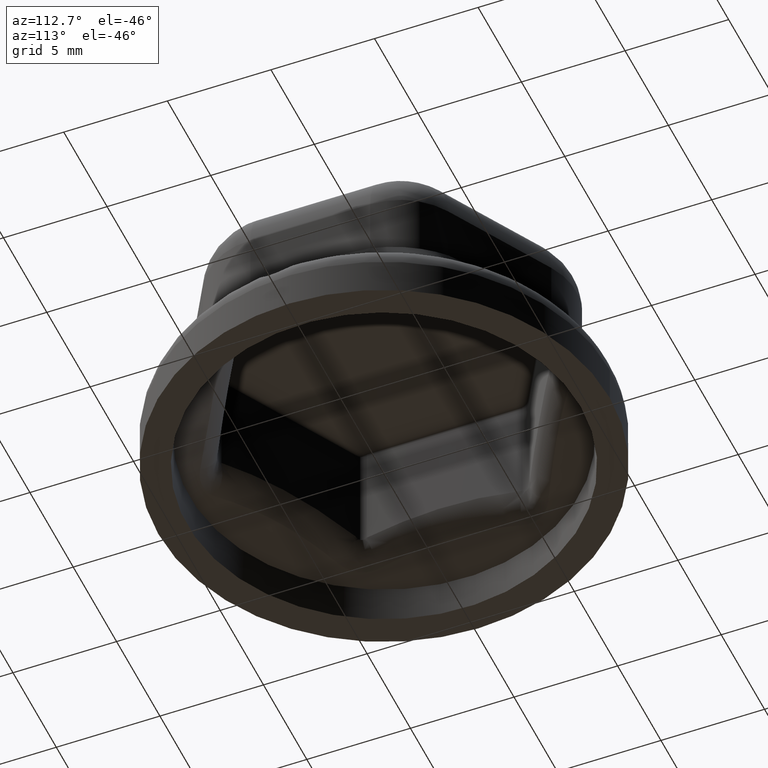
[diagram: clean part render]
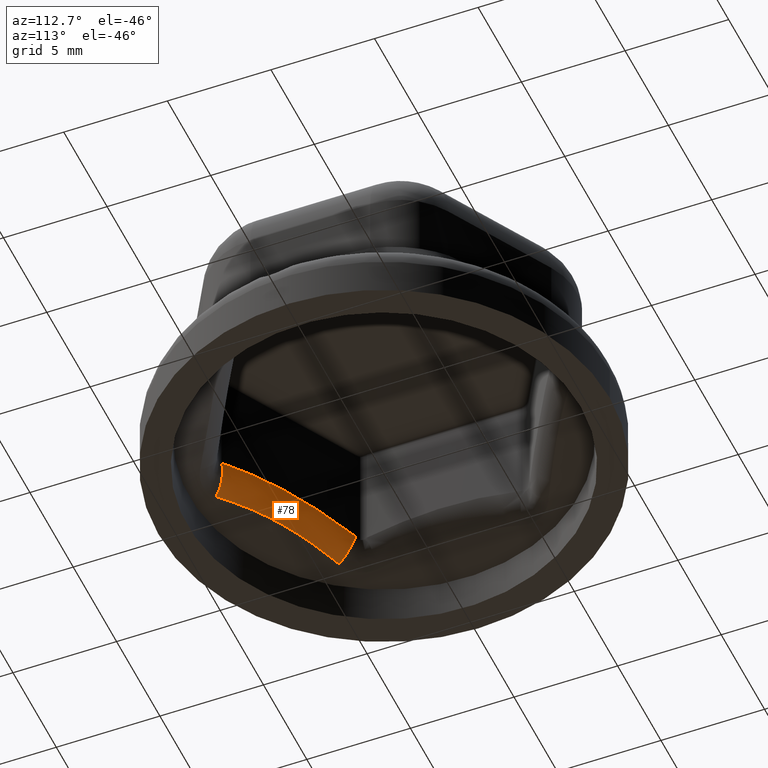
[diagram: same view with one face highlighted and labeled with its STEP entity id]
A machine part, auxiliary view. The second image highlights one B-rep face of the part: STEP entity #78.
In plain terms, the highlighted face is a freeform B-spline surface patch.
Its self-contained STEP definition (entity closure, byte-faithful):
#78 = ADVANCED_FACE( '', ( #162 ), #163, .T. );
#162 = FACE_OUTER_BOUND( '', #424, .T. );
#163 = ( B_SPLINE_SURFACE( 3, 2, ( ( #426, #427, #428 ), ( #429, #430, #431 ), ( #432, #433, #434 ), ( #435, #436, #437 ), ( #438, #439, #440 ), ( #441, #442, #443 ), ( #444, #445, #446 ), ( #447, #448, #449 ), ( #450, #451, #452 ), ( #453, #454, #455 ), ( #456, #457, #458 ), ( #459, #460, #461 ), ( #462, #463, #464 ), ( #465, #466, #467 ), ( #468, #469, #470 ), ( #471, #472, #473 ), ( #474, #475, #476 ), ( #477, #478, #479 ), ( #480, #481, #482 ), ( #483, #484, #485 ), ( #486, #487, #488 ), ( #489, #490, #491 ) ), .UNSPECIFIED., .F., .F., .F. )B_SPLINE_SURFACE_WITH_KNOTS( ( 4, 2, 2, 2, 2, 2, 2, 2, 2, 2, 4 ), ( 3, 3 ), ( -1.73472347597681E-018, 0.000940884050545958, 0.00188176810109192, 0.00282265215163788, 0.00376353620218384, 0.00470442025272980, 0.00493964126536629, 0.00517486227800278, 0.00564530430327576, 0.00658618835382172, 0.00752707240436768 ), ( 0.000000000000000, 1.00000000000000 ), .UNSPECIFIED. )RATIONAL_B_SPLINE_SURFACE( ( ( 1.00000000000000, 0.853640352292913, 1.00000000000000 ), ( 1.00000000000000, 0.855438688548693, 1.00000000000000 ), ( 1.00000000000000, 0.857121907416946, 1.00000000000000 ), ( 1.00000000000000, 0.860138400635577, 1.00000000000000 ), ( 1.00000000000000, 0.861471084543621, 1.00000000000000 ), ( 1.00000000000000, 0.863669881456907, 1.00000000000000 ), ( 1.00000000000000, 0.864535181731640, 1.00000000000000 ), ( 1.00000000000000, 0.865708817500304, 1.00000000000000 ), ( 1.00000000000000, 0.866016527547667, 1.00000000000000 ), ( 1.00000000000000, 0.866033898519984, 1.00000000000000 ), ( 1.00000000000000, 0.865743429549567, 1.00000000000000 ), ( 1.00000000000000, 0.865019447407106, 1.00000000000000 ), ( 1.00000000000000, 0.864856755115137, 1.00000000000000 ), ( 1.00000000000000, 0.864496481522335, 1.00000000000000 ), ( 1.00000000000000, 0.864298827518677, 1.00000000000000 ), ( 1.00000000000000, 0.863656912061713, 1.00000000000000 ), ( 1.00000000000000, 0.863163250316438, 1.00000000000000 ), ( 1.00000000000000, 0.861505368756379, 1.00000000000000 ), ( 1.00000000000000, 0.860163993618714, 1.00000000000000 ), ( 1.00000000000000, 0.857132156472155, 1.00000000000000 ), ( 1.00000000000000, 0.855442233223448, 1.00000000000000 ), ( 1.00000000000000, 0.853640352292913, 1.00000000000000 ) ) )BOUNDED_SURFACE(  )REPRESENTATION_ITEM( '' )GEOMETRIC_REPRESENTATION_ITEM(  )SURFACE(  ) );
#424 = EDGE_LOOP( '', ( #2878, #2879, #2880, #2881 ) );
#426 = CARTESIAN_POINT( '', ( -6.75000000000000, -4.18578945162479, 3.59465102480765 ) );
#427 = CARTESIAN_POINT( '', ( -6.56999875817767, -4.28971321704538, 2.70331384501177 ) );
#428 = CARTESIAN_POINT( '', ( -6.89461274718679, -5.04210159902559, 2.29561291913099 ) );
#429 = CARTESIAN_POINT( '', ( -6.48252287388098, -4.34021744239167, 3.66667197854843 ) );
#430 = CARTESIAN_POINT( '', ( -6.31567629244598, -4.43654636109709, 2.77909092662657 ) );
#431 = CARTESIAN_POINT( '', ( -6.64059484851555, -5.17812245719401, 2.36763485032377 ) );
#432 = CARTESIAN_POINT( '', ( -6.21453816361945, -4.49493848699987, 3.73138558984828 ) );
#433 = CARTESIAN_POINT( '', ( -6.06141273176084, -4.58334549630309, 2.84728294727299 ) );
#434 = CARTESIAN_POINT( '', ( -6.38749201579470, -5.31426318877854, 2.43234748395276 ) );
#435 = CARTESIAN_POINT( '', ( -5.67742031992806, -4.80504361864164, 3.84429754955436 ) );
#436 = CARTESIAN_POINT( '', ( -5.55273998998548, -4.87702784069676, 2.96638512344405 ) );
#437 = CARTESIAN_POINT( '', ( -5.88310701389295, -5.58752559880211, 2.54525944409656 ) );
#438 = CARTESIAN_POINT( '', ( -5.40828689336745, -4.96042787491434, 3.89248895292657 ) );
#439 = CARTESIAN_POINT( '', ( -5.29833210525869, -5.02391030142761, 3.01728681343088 ) );
#440 = CARTESIAN_POINT( '', ( -5.63183095151243, -5.72464830706708, 2.59345084706630 ) );
#441 = CARTESIAN_POINT( '', ( -4.86875260647632, -5.27192814068797, 3.97063900532639 ) );
#442 = CARTESIAN_POINT( '', ( -4.78903496955402, -5.31795313982423, 3.09988751368061 ) );
#443 = CARTESIAN_POINT( '', ( -5.13088190519890, -6.00073122384563, 2.67160089983335 ) );
#444 = CARTESIAN_POINT( '', ( -4.59835123851589, -5.42804444326916, 4.00059035181303 ) );
#445 = CARTESIAN_POINT( '', ( -4.53414466421014, -5.46511412622825, 3.13157799224267 ) );
#446 = CARTESIAN_POINT( '', ( -4.88120950734629, -6.13969638157128, 2.70155224601464 ) );
#447 = CARTESIAN_POINT( '', ( -4.05619038772046, -5.74106115641998, 4.04095579128119 ) );
#448 = CARTESIAN_POINT( '', ( -4.02347772711667, -5.75994781982557, 3.17429806435647 ) );
#449 = CARTESIAN_POINT( '', ( -4.38294819284734, -6.42033321692930, 2.74191768572627 ) );
#450 = CARTESIAN_POINT( '', ( -3.78443051371600, -5.89796179283139, 4.05136425706139 ) );
#451 = CARTESIAN_POINT( '', ( -3.76769935008278, -5.90762153465882, 3.18532110079173 ) );
#452 = CARTESIAN_POINT( '', ( -4.13435686168077, -6.56201038280346, 2.75232615134360 ) );
#453 = CARTESIAN_POINT( '', ( -3.23950475118947, -6.21257482851445, 4.05195487156024 ) );
#454 = CARTESIAN_POINT( '', ( -3.25482795930402, -6.20372797018474, 3.18594645725832 ) );
#455 = CARTESIAN_POINT( '', ( -3.63746746204618, -6.84878538568381, 2.75291676592471 ) );
#456 = CARTESIAN_POINT( '', ( -2.96633872809151, -6.37028730548351, 4.04213508432208 ) );
#457 = CARTESIAN_POINT( '', ( -2.99773297299429, -6.35216182973780, 3.17554662217034 ) );
#458 = CARTESIAN_POINT( '', ( -3.38916429429999, -6.99388698686463, 2.74309697868969 ) );
#459 = CARTESIAN_POINT( '', ( -2.62400447930493, -6.56793407617328, 4.01724823657357 ) );
#460 = CARTESIAN_POINT( '', ( -2.67529649942177, -6.53832061455156, 3.14920748203915 ) );
#461 = CARTESIAN_POINT( '', ( -3.07837793099850, -7.17765915070241, 2.71821013088585 ) );
#462 = CARTESIAN_POINT( '', ( -2.55549392037607, -6.60748866581318, 4.01164208577561 ) );
#463 = CARTESIAN_POINT( '', ( -2.61075598387336, -6.57558309857699, 3.14327475814500 ) );
#464 = CARTESIAN_POINT( '', ( -3.01620014871815, -7.21453247802095, 2.71260398011504 ) );
#465 = CARTESIAN_POINT( '', ( -2.41838594053574, -6.68664799488205, 3.99918022524836 ) );
#466 = CARTESIAN_POINT( '', ( -2.48156319004212, -6.65017259287294, 3.13008897328165 ) );
#467 = CARTESIAN_POINT( '', ( -2.89178876228796, -7.28851970036583, 2.70014211955561 ) );
#468 = CARTESIAN_POINT( '', ( -2.34977214868987, -6.72626218607438, 3.99232192514206 ) );
#469 = CARTESIAN_POINT( '', ( -2.41689545323414, -6.68750852812679, 3.12283317457073 ) );
#470 = CARTESIAN_POINT( '', ( -2.82954030642810, -7.32564260435356, 2.69328381951365 ) );
#471 = CARTESIAN_POINT( '', ( -2.14430783696277, -6.84488706175888, 3.96994882216520 ) );
#472 = CARTESIAN_POINT( '', ( -2.22319459904195, -6.79934176843709, 3.09916757161490 ) );
#473 = CARTESIAN_POINT( '', ( -2.64314857608818, -7.43709878244336, 2.67091071639203 ) );
#474 = CARTESIAN_POINT( '', ( -2.00767002748138, -6.92377493784444, 3.95262162539415 ) );
#475 = CARTESIAN_POINT( '', ( -2.09430881239307, -6.87375401205343, 3.08084448531785 ) );
#476 = CARTESIAN_POINT( '', ( -2.51920940441610, -7.51160854581036, 2.65358351982673 ) );
#477 = CARTESIAN_POINT( '', ( -1.59872648448986, -7.15987860247396, 3.89372757592808 ) );
#478 = CARTESIAN_POINT( '', ( -1.70829675953528, -7.09661817468127, 3.01859513871408 ) );
#479 = CARTESIAN_POINT( '', ( -2.14814335344640, -7.73575169671285, 2.59468947003294 ) );
#480 = CARTESIAN_POINT( '', ( -1.32739152662762, -7.31653391343628, 3.84524191958265 ) );
#481 = CARTESIAN_POINT( '', ( -1.45181327163846, -7.24469898546087, 2.96738181750420 ) );
#482 = CARTESIAN_POINT( '', ( -1.90176061745932, -7.88600457658628, 2.54620381415373 ) );
#483 = CARTESIAN_POINT( '', ( -0.787035027587705, -7.62850888361534, 3.73178268216818 ) );
#484 = CARTESIAN_POINT( '', ( -0.940080856491517, -7.54014783309972, 2.84770126554552 ) );
#485 = CARTESIAN_POINT( '', ( -1.40997703924827, -8.18797201825706, 2.43274457624378 ) );
#486 = CARTESIAN_POINT( '', ( -0.518012514116614, -7.78382910418594, 3.66681613765154 ) );
#487 = CARTESIAN_POINT( '', ( -0.684832740090564, -7.68751540181293, 2.77924259668536 ) );
#488 = CARTESIAN_POINT( '', ( -1.16457818177520, -8.33968086331206, 2.36777901234536 ) );
#489 = CARTESIAN_POINT( '', ( -0.250000000000004, -7.93856620135735, 3.59465102480765 ) );
#490 = CARTESIAN_POINT( '', ( -0.430001241822334, -7.83464243593676, 2.70331384501177 ) );
#491 = CARTESIAN_POINT( '', ( -0.919281699624909, -8.49196058783257, 2.29561291913099 ) );
#2878 = ORIENTED_EDGE( '', *, *, #3367, .F. );
#2879 = ORIENTED_EDGE( '', *, *, #3368, .T. );
#2880 = ORIENTED_EDGE( '', *, *, #3362, .F. );
#2881 = ORIENTED_EDGE( '', *, *, #3369, .T. );
#3362 = EDGE_CURVE( '', #3548, #3550, #3551, .T. );
#3367 = EDGE_CURVE( '', #3558, #3559, #3560, .T. );
#3368 = EDGE_CURVE( '', #3558, #3550, #3561, .T. );
#3369 = EDGE_CURVE( '', #3548, #3559, #3562, .T. );
#3548 = VERTEX_POINT( '', #3828 );
#3550 = VERTEX_POINT( '', #3862 );
#3551 = CIRCLE( '', #3863, 1.50000000000000 );
#3558 = VERTEX_POINT( '', #3909 );
#3559 = VERTEX_POINT( '', #3910 );
#3560 = CIRCLE( '', #3911, 1.50000000000000 );
#3561 = B_SPLINE_CURVE_WITH_KNOTS( '', 3, ( #3912, #3913, #3914, #3915, #3916, #3917, #3918, #3919, #3920, #3921, #3922, #3923, #3924, #3925, #3926, #3927, #3928, #3929, #3930, #3931, #3932, #3933, #3934, #3935 ), .UNSPECIFIED., .F., .F., ( 4, 2, 2, 2, 1, 1, 1, 2, 2, 2, 1, 2, 2, 4 ), ( 0.000000000000000, 0.000940884050545963, 0.00188176810109193, 0.00282265215163789, 0.00329309417691087, 0.00376353620218385, 0.00423397822745683, 0.00470442025272981, 0.00493964126536630, 0.00505725177168454, 0.00517486227800279, 0.00564530430327576, 0.00658618835382172, 0.00752707240436768 ), .UNSPECIFIED. );
#3562 = B_SPLINE_CURVE_WITH_KNOTS( '', 3, ( #3936, #3937, #3938, #3939, #3940, #3941, #3942, #3943, #3944, #3945, #3946, #3947, #3948, #3949, #3950, #3951, #3952, #3953, #3954, #3955, #3956, #3957, #3958, #3959 ), .UNSPECIFIED., .F., .F., ( 4, 2, 2, 2, 2, 2, 1, 1, 1, 1, 1, 1, 2, 2, 4 ), ( 3.25260651745651E-019, 0.000876904540789186, 0.00175380908157837, 0.00219226135197297, 0.00230187441957161, 0.00241148748717026, 0.00263071362236756, 0.00306916589276216, 0.00350761816315676, 0.00394607043355136, 0.00438452270394596, 0.00482297497434056, 0.00526142724473516, 0.00613833178552437, 0.00701523632631357 ), .UNSPECIFIED. );
#3828 = CARTESIAN_POINT( '', ( -0.919281699624908, -8.49196058783257, 2.29561291913099 ) );
#3862 = CARTESIAN_POINT( '', ( -0.250000000000002, -7.93856620135735, 3.59465102480765 ) );
#3863 = AXIS2_PLACEMENT_3D( '', #5422, #5423, #5424 );
#3909 = CARTESIAN_POINT( '', ( -6.75000000000000, -4.18578945162479, 3.59465102480765 ) );
#3910 = CARTESIAN_POINT( '', ( -6.89461274718679, -5.04210159902559, 2.29561291913099 ) );
#3911 = AXIS2_PLACEMENT_3D( '', #5430, #5431, #5432 );
#3912 = CARTESIAN_POINT( '', ( -6.75000000000000, -4.18578945162479, 3.59465102480765 ) );
#3913 = CARTESIAN_POINT( '', ( -6.48252305999486, -4.34021733493877, 3.66667192771039 ) );
#3914 = CARTESIAN_POINT( '', ( -6.21453816359587, -4.49493848701348, 3.73138558950666 ) );
#3915 = CARTESIAN_POINT( '', ( -5.67742031995164, -4.80504361862803, 3.84429754989597 ) );
#3916 = CARTESIAN_POINT( '', ( -5.40828689334750, -4.96042787492586, 3.89248895263888 ) );
#3917 = CARTESIAN_POINT( '', ( -4.86875260649627, -5.27192814067644, 3.97063900561408 ) );
#3918 = CARTESIAN_POINT( '', ( -4.59835123850257, -5.42804444327685, 4.00059035162306 ) );
#3919 = CARTESIAN_POINT( '', ( -4.19173060042597, -5.66280697812843, 4.03086443150913 ) );
#3920 = CARTESIAN_POINT( '', ( -3.92031120439970, -5.81951103948749, 4.04617086630694 ) );
#3921 = CARTESIAN_POINT( '', ( -3.51214301169408, -6.05516705542072, 4.05418249426515 ) );
#3922 = CARTESIAN_POINT( '', ( -3.10292255140006, -6.29143059832937, 4.04705665556303 ) );
#3923 = CARTESIAN_POINT( '', ( -2.82940502857958, -6.44934601375786, 4.03218034526164 ) );
#3924 = CARTESIAN_POINT( '', ( -2.62400447930358, -6.56793407617406, 4.01724823655409 ) );
#3925 = CARTESIAN_POINT( '', ( -2.55549392037795, -6.60748866581210, 4.01164208580321 ) );
#3926 = CARTESIAN_POINT( '', ( -2.45266293549488, -6.66685816261537, 4.00229569036637 ) );
#3927 = CARTESIAN_POINT( '', ( -2.41836639030648, -6.68665928221217, 3.99902317333208 ) );
#3928 = CARTESIAN_POINT( '', ( -2.34979328952062, -6.72624998041005, 3.99217125257672 ) );
#3929 = CARTESIAN_POINT( '', ( -2.17846728936501, -6.82516509271908, 3.97428062113127 ) );
#3930 = CARTESIAN_POINT( '', ( -2.00767002745788, -6.92377493785801, 3.95262162556161 ) );
#3931 = CARTESIAN_POINT( '', ( -1.59872648453685, -7.15987860244682, 3.89372757559316 ) );
#3932 = CARTESIAN_POINT( '', ( -1.32739152657460, -7.31653391346689, 3.84524191996013 ) );
#3933 = CARTESIAN_POINT( '', ( -0.787035027640726, -7.62850888358472, 3.73178268179069 ) );
#3934 = CARTESIAN_POINT( '', ( -0.518012499812509, -7.78382911244442, 3.66681613266834 ) );
#3935 = CARTESIAN_POINT( '', ( -0.250000000000002, -7.93856620135735, 3.59465102480765 ) );
#3936 = CARTESIAN_POINT( '', ( -0.919281699624907, -8.49196058783257, 2.29561291913099 ) );
#3937 = CARTESIAN_POINT( '', ( -1.16082663673923, -8.34200981812663, 2.36667530939436 ) );
#3938 = CARTESIAN_POINT( '', ( -1.40363271604191, -8.19188957736323, 2.43110250083223 ) );
#3939 = CARTESIAN_POINT( '', ( -1.89249266035225, -7.89167404042601, 2.54423837679901 ) );
#3940 = CARTESIAN_POINT( '', ( -2.13855010253008, -7.74158131584853, 2.59293729726427 ) );
#3941 = CARTESIAN_POINT( '', ( -2.51064229122536, -7.51676704911602, 2.65233249383732 ) );
#3942 = CARTESIAN_POINT( '', ( -2.63517391790174, -7.44188317154183, 2.66985610440179 ) );
#3943 = CARTESIAN_POINT( '', ( -2.79151846772487, -7.34837502331085, 2.68874091555148 ) );
#3944 = CARTESIAN_POINT( '', ( -2.82282135485385, -7.32967821382436, 2.69236696387953 ) );
#3945 = CARTESIAN_POINT( '', ( -2.88549632509417, -7.29229489106223, 2.69931314120429 ) );
#3946 = CARTESIAN_POINT( '', ( -2.91686231101705, -7.27361203789609, 2.70263245550156 ) );
#3947 = CARTESIAN_POINT( '', ( -3.01092415350291, -7.21766393493912, 2.71211252713662 ) );
#3948 = CARTESIAN_POINT( '', ( -3.19903799693209, -7.10608892245747, 2.72917706815031 ) );
#3949 = CARTESIAN_POINT( '', ( -3.51252720613071, -6.92178234724924, 2.74803656213350 ) );
#3950 = CARTESIAN_POINT( '', ( -3.88869131898748, -6.70333957972218, 2.75518874031868 ) );
#3951 = CARTESIAN_POINT( '', ( -4.26484271670754, -6.48763060899194, 2.74691508102637 ) );
#3952 = CARTESIAN_POINT( '', ( -4.64097006091215, -6.27459013985109, 2.72346795502445 ) );
#3953 = CARTESIAN_POINT( '', ( -5.01704240574796, -6.06408540698836, 2.68528183563784 ) );
#3954 = CARTESIAN_POINT( '', ( -5.26768951952955, -5.92531385429427, 2.65039084784295 ) );
#3955 = CARTESIAN_POINT( '', ( -5.64358062579941, -5.71821573100611, 2.59133353702328 ) );
#3956 = CARTESIAN_POINT( '', ( -5.89406861671864, -5.58156392916296, 2.54299345487988 ) );
#3957 = CARTESIAN_POINT( '', ( -6.39466478324334, -5.31040098574352, 2.43054696741425 ) );
#3958 = CARTESIAN_POINT( '', ( -6.64477171566168, -5.17588583952044, 2.36645057911771 ) );
#3959 = CARTESIAN_POINT( '', ( -6.89461274718679, -5.04210159902559, 2.29561291913099 ) );
#5422 = CARTESIAN_POINT( '', ( -1.00000000000000, -9.23760430703401, 3.59465102480765 ) );
#5423 = DIRECTION( '', ( 0.843398678256730, -0.486936453925698, -0.227093723720113 ) );
#5424 = DIRECTION( '', ( 0.500000000000000, 0.866025403784439, 0.000000000000000 ) );
#5430 = CARTESIAN_POINT( '', ( -7.50000000000000, -5.48482755730144, 3.59465102480765 ) );
#5431 = DIRECTION( '', ( -0.843398678256730, 0.486936453925698, -0.227093723720114 ) );
#5432 = DIRECTION( '', ( -0.500000000000001, -0.866025403784438, 0.000000000000000 ) );